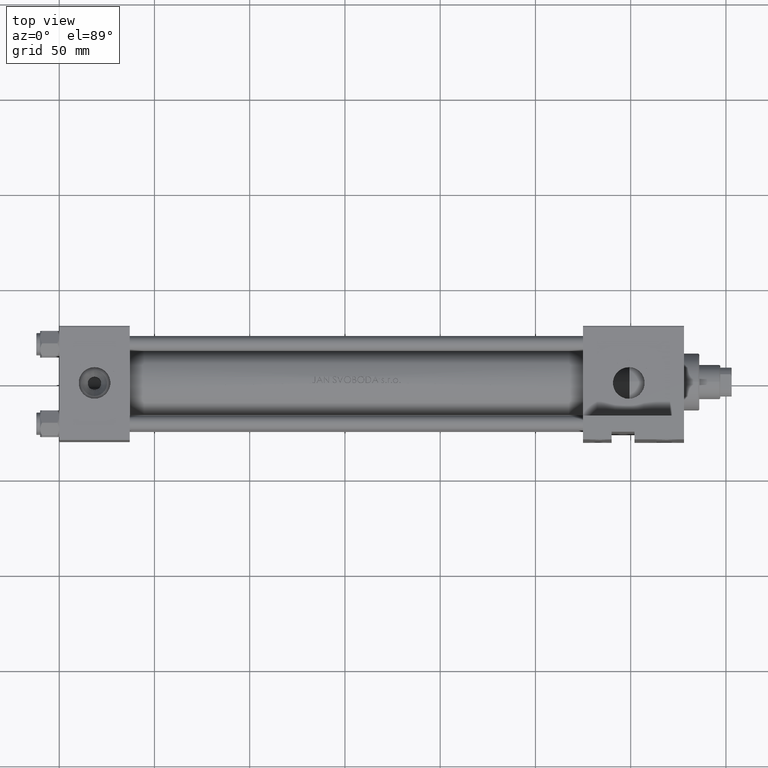
[diagram: clean part render]
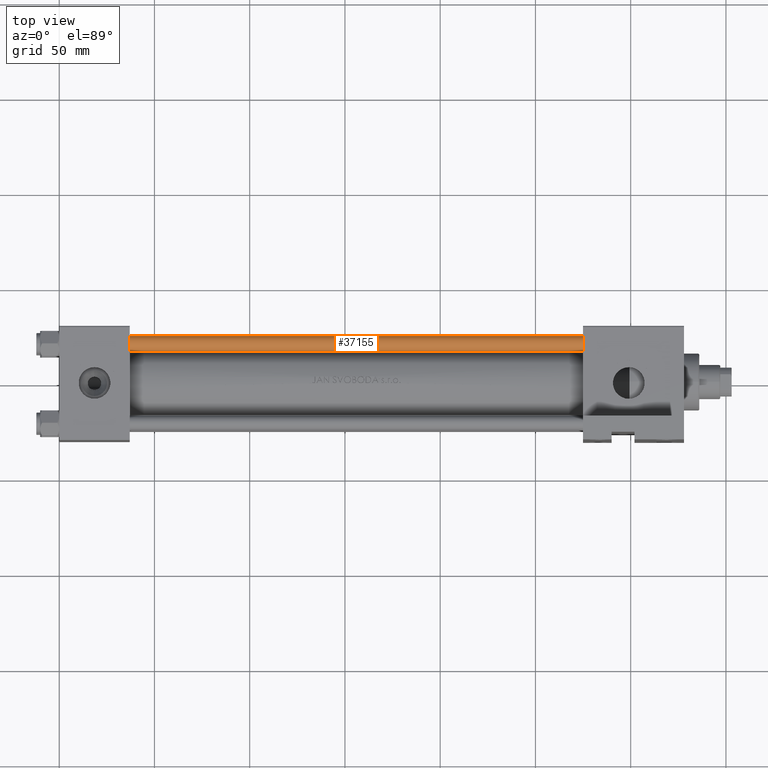
[diagram: same view with one face highlighted and labeled with its STEP entity id]
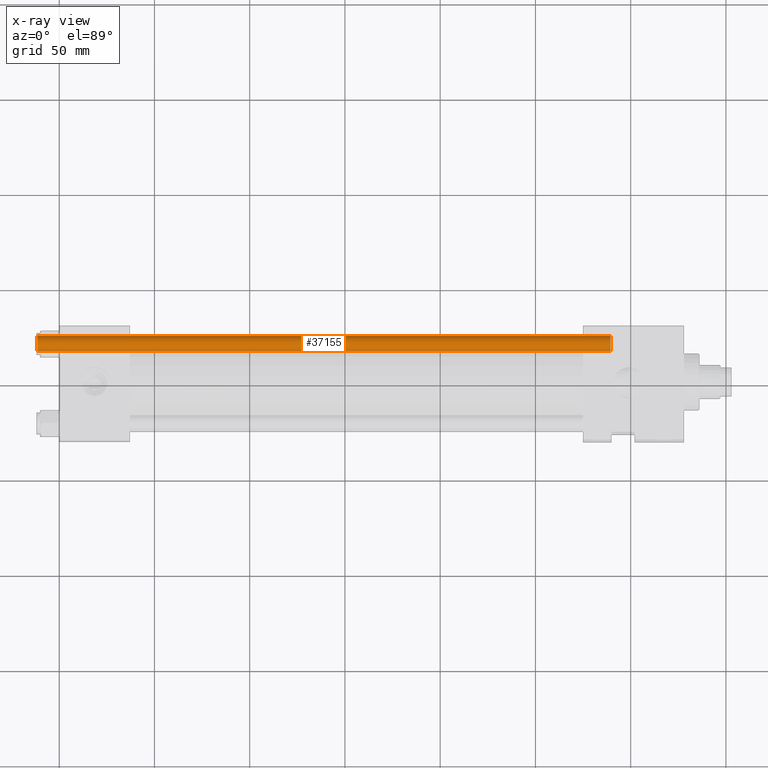
[diagram: x-ray of the same camera — body ghosted, the highlighted face saturated]
A machine part, top view. The second image highlights one B-rep face of the part: STEP entity #37155.
The next image is the same camera in x-ray: the body ghosted, the highlighted face saturated — about 0% of this face is hidden behind the body in this view.
In plain terms, the highlighted cylindrical surface (edge-blend (fillet) strip) has radius 4 mm, axis along (1, -0, 0).
Its self-contained STEP definition (entity closure, byte-faithful):
#583 = CARTESIAN_POINT ( 'NONE',  ( -4.000000000000000000, 0.000000000000000000, 302.0000000000000000 ) ) ;
#2118 = LINE ( 'NONE', #9741, #19273 ) ;
#3254 = CYLINDRICAL_SURFACE ( 'NONE', #11154, 4.000000000000000000 ) ;
#5799 = CARTESIAN_POINT ( 'NONE',  ( 0.000000000000000000, 0.000000000000000000, 0.5000000000000559552 ) ) ;
#6637 = EDGE_CURVE ( 'NONE', #18596, #25608, #2118, .T. ) ;
#7184 = EDGE_CURVE ( 'NONE', #18596, #11545, #43707, .T. ) ;
#7665 = FACE_OUTER_BOUND ( 'NONE', #23401, .T. ) ;
#9741 = CARTESIAN_POINT ( 'NONE',  ( 4.000000000000000000, 4.898587196589412829E-16, 302.0000000000000000 ) ) ;
#10939 = DIRECTION ( 'NONE',  ( -0.000000000000000000, -0.000000000000000000, -1.000000000000000000 ) ) ;
#11154 = AXIS2_PLACEMENT_3D ( 'NONE', #22698, #48615, #25915 ) ;
#11505 = ORIENTED_EDGE ( 'NONE', *, *, #40734, .T. ) ;
#11545 = VERTEX_POINT ( 'NONE', #26754 ) ;
#12898 = ORIENTED_EDGE ( 'NONE', *, *, #7184, .T. ) ;
#15136 = CARTESIAN_POINT ( 'NONE',  ( -4.000000000000000000, 0.000000000000000000, 0.5000000000000559552 ) ) ;
#15601 = LINE ( 'NONE', #583, #19933 ) ;
#15648 = CARTESIAN_POINT ( 'NONE',  ( 4.000000000000000000, 4.898587196589412829E-16, 301.4999999999999432 ) ) ;
#17825 = VERTEX_POINT ( 'NONE', #15136 ) ;
#18596 = VERTEX_POINT ( 'NONE', #15648 ) ;
#19273 = VECTOR ( 'NONE', #24769, 1000.000000000000000 ) ;
#19933 = VECTOR ( 'NONE', #10939, 1000.000000000000000 ) ;
#20829 = DIRECTION ( 'NONE',  ( -0.000000000000000000, -0.000000000000000000, 1.000000000000000000 ) ) ;
#21861 = DIRECTION ( 'NONE',  ( 0.000000000000000000, 0.000000000000000000, -1.000000000000000000 ) ) ;
#22116 = CARTESIAN_POINT ( 'NONE',  ( 4.000000000000000000, 4.898587196589412829E-16, 0.5000000000000559552 ) ) ;
#22698 = CARTESIAN_POINT ( 'NONE',  ( 0.000000000000000000, 0.000000000000000000, 302.0000000000000000 ) ) ;
#23401 = EDGE_LOOP ( 'NONE', ( #31481, #12898, #11505, #24811 ) ) ;
#24769 = DIRECTION ( 'NONE',  ( -0.000000000000000000, -0.000000000000000000, -1.000000000000000000 ) ) ;
#24811 = ORIENTED_EDGE ( 'NONE', *, *, #41551, .T. ) ;
#25312 = CARTESIAN_POINT ( 'NONE',  ( 0.000000000000000000, 0.000000000000000000, 301.4999999999999432 ) ) ;
#25608 = VERTEX_POINT ( 'NONE', #22116 ) ;
#25915 = DIRECTION ( 'NONE',  ( -1.000000000000000000, 0.000000000000000000, 0.000000000000000000 ) ) ;
#26754 = CARTESIAN_POINT ( 'NONE',  ( -4.000000000000000000, 0.000000000000000000, 301.4999999999999432 ) ) ;
#31090 = AXIS2_PLACEMENT_3D ( 'NONE', #25312, #21861, #36918 ) ;
#31481 = ORIENTED_EDGE ( 'NONE', *, *, #6637, .F. ) ;
#36918 = DIRECTION ( 'NONE',  ( 1.000000000000000000, 0.000000000000000000, 0.000000000000000000 ) ) ;
#37155 = ADVANCED_FACE ( 'NONE', ( #7665 ), #3254, .T. ) ;
#39731 = AXIS2_PLACEMENT_3D ( 'NONE', #5799, #20829, #46987 ) ;
#40734 = EDGE_CURVE ( 'NONE', #11545, #17825, #15601, .T. ) ;
#41551 = EDGE_CURVE ( 'NONE', #17825, #25608, #45196, .T. ) ;
#43707 = CIRCLE ( 'NONE', #31090, 4.000000000000000000 ) ;
#45196 = CIRCLE ( 'NONE', #39731, 4.000000000000000000 ) ;
#46987 = DIRECTION ( 'NONE',  ( 1.000000000000000000, 0.000000000000000000, 0.000000000000000000 ) ) ;
#48615 = DIRECTION ( 'NONE',  ( -0.000000000000000000, -0.000000000000000000, -1.000000000000000000 ) ) ;